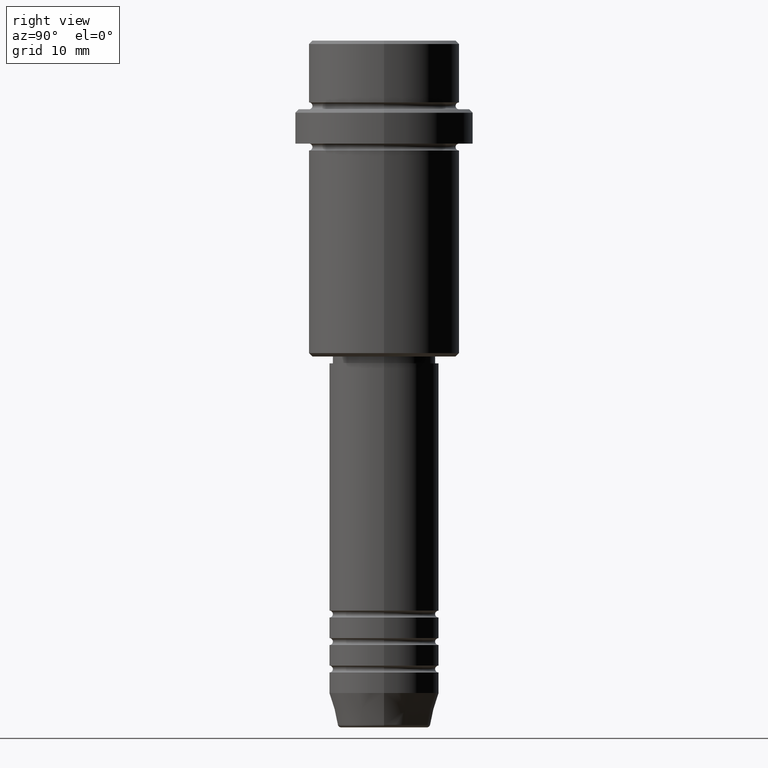
[diagram: clean part render]
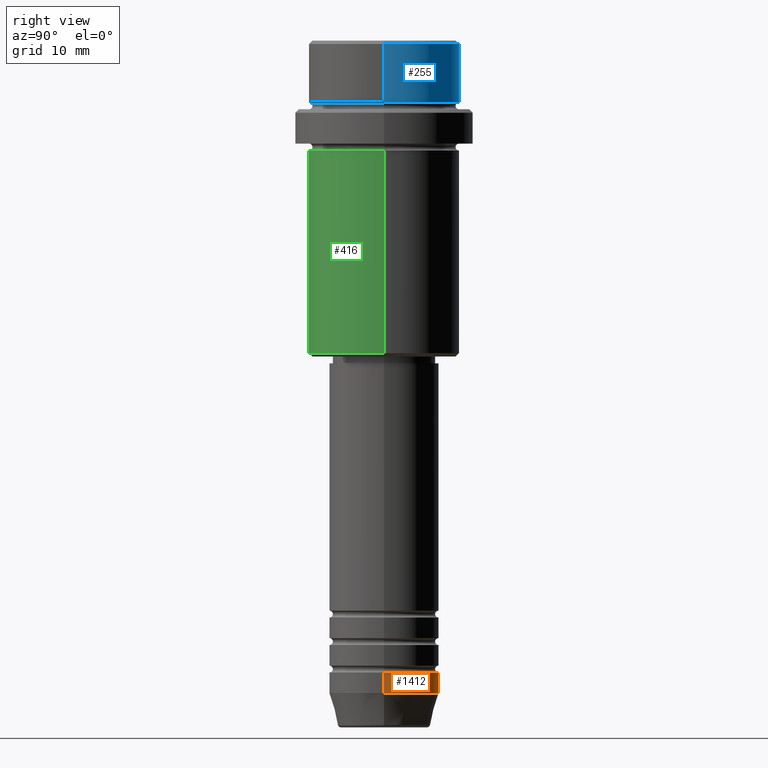
[diagram: same view with three faces highlighted in distinct colors, each labeled with its STEP entity id]
A machine part, right view with three faces highlighted in distinct colors.
Their STEP definitions:

[orange] entity #1412 — the highlighted cylindrical surface (partial cylindrical patch) has radius 8 mm, axis along (-0, -0, 1).
#12 = VERTEX_POINT ( 'NONE', #1232 ) ;
#92 = DIRECTION ( 'NONE',  ( -0.000000000000000000, -0.000000000000000000, 1.000000000000000000 ) ) ;
#105 = EDGE_CURVE ( 'NONE', #109, #125, #729, .T. ) ;
#108 = CARTESIAN_POINT ( 'NONE',  ( 0.000000000000000000, 0.000000000000000000, -92.00000000000000000 ) ) ;
#109 = VERTEX_POINT ( 'NONE', #423 ) ;
#125 = VERTEX_POINT ( 'NONE', #174 ) ;
#128 = ORIENTED_EDGE ( 'NONE', *, *, #799, .T. ) ;
#164 = CIRCLE ( 'NONE', #698, 8.000000000000000000 ) ;
#174 = CARTESIAN_POINT ( 'NONE',  ( 8.000000000000000000, 0.000000000000000000, -92.00000000000000000 ) ) ;
#196 = CARTESIAN_POINT ( 'NONE',  ( 0.000000000000000000, 0.000000000000000000, -95.00000000000000000 ) ) ;
#216 = EDGE_CURVE ( 'NONE', #1077, #12, #431, .T. ) ;
#304 = DIRECTION ( 'NONE',  ( 1.000000000000000000, 0.000000000000000000, 0.000000000000000000 ) ) ;
#313 = DIRECTION ( 'NONE',  ( 1.000000000000000000, 0.000000000000000000, 0.000000000000000000 ) ) ;
#364 = AXIS2_PLACEMENT_3D ( 'NONE', #1399, #92, #313 ) ;
#406 = CARTESIAN_POINT ( 'NONE',  ( 8.000000000000000000, 0.000000000000000000, 0.000000000000000000 ) ) ;
#423 = CARTESIAN_POINT ( 'NONE',  ( 8.000000000000000000, 0.000000000000000000, -95.00000000000000000 ) ) ;
#431 = LINE ( 'NONE', #1192, #987 ) ;
#454 = EDGE_LOOP ( 'NONE', ( #128, #947, #1096, #787 ) ) ;
#548 = CIRCLE ( 'NONE', #696, 8.000000000000000000 ) ;
#619 = DIRECTION ( 'NONE',  ( -0.000000000000000000, -0.000000000000000000, 1.000000000000000000 ) ) ;
#670 = CARTESIAN_POINT ( 'NONE',  ( -8.000000000000000000, 9.797174393178825657E-16, -95.00000000000000000 ) ) ;
#696 = AXIS2_PLACEMENT_3D ( 'NONE', #196, #619, #304 ) ;
#698 = AXIS2_PLACEMENT_3D ( 'NONE', #108, #1180, #1095 ) ;
#729 = LINE ( 'NONE', #406, #782 ) ;
#756 = CYLINDRICAL_SURFACE ( 'NONE', #364, 8.000000000000000000 ) ;
#782 = VECTOR ( 'NONE', #1264, 1000.000000000000000 ) ;
#787 = ORIENTED_EDGE ( 'NONE', *, *, #105, .F. ) ;
#799 = EDGE_CURVE ( 'NONE', #109, #1077, #548, .T. ) ;
#863 = FACE_OUTER_BOUND ( 'NONE', #454, .T. ) ;
#947 = ORIENTED_EDGE ( 'NONE', *, *, #216, .T. ) ;
#987 = VECTOR ( 'NONE', #1411, 1000.000000000000000 ) ;
#1009 = EDGE_CURVE ( 'NONE', #125, #12, #164, .T. ) ;
#1077 = VERTEX_POINT ( 'NONE', #670 ) ;
#1095 = DIRECTION ( 'NONE',  ( 1.000000000000000000, 0.000000000000000000, 0.000000000000000000 ) ) ;
#1096 = ORIENTED_EDGE ( 'NONE', *, *, #1009, .F. ) ;
#1180 = DIRECTION ( 'NONE',  ( -0.000000000000000000, -0.000000000000000000, 1.000000000000000000 ) ) ;
#1192 = CARTESIAN_POINT ( 'NONE',  ( -8.000000000000000000, 9.797174393178825657E-16, 0.000000000000000000 ) ) ;
#1232 = CARTESIAN_POINT ( 'NONE',  ( -8.000000000000000000, 9.797174393178825657E-16, -92.00000000000000000 ) ) ;
#1264 = DIRECTION ( 'NONE',  ( -0.000000000000000000, -0.000000000000000000, 1.000000000000000000 ) ) ;
#1399 = CARTESIAN_POINT ( 'NONE',  ( 0.000000000000000000, 0.000000000000000000, 0.000000000000000000 ) ) ;
#1411 = DIRECTION ( 'NONE',  ( -0.000000000000000000, -0.000000000000000000, 1.000000000000000000 ) ) ;
#1412 = ADVANCED_FACE ( 'NONE', ( #863 ), #756, .T. ) ;

[blue] entity #255 — the highlighted cylindrical surface (partial cylindrical patch) has radius 11 mm, axis along (-0, -0, 1).
#6 = VERTEX_POINT ( 'NONE', #595 ) ;
#50 = CARTESIAN_POINT ( 'NONE',  ( 10.99999999999998757, 0.000000000000000000, 0.000000000000000000 ) ) ;
#165 = AXIS2_PLACEMENT_3D ( 'NONE', #817, #685, #1358 ) ;
#167 = EDGE_CURVE ( 'NONE', #6, #966, #716, .T. ) ;
#186 = LINE ( 'NONE', #422, #340 ) ;
#255 = ADVANCED_FACE ( 'NONE', ( #823 ), #923, .T. ) ;
#296 = LINE ( 'NONE', #50, #763 ) ;
#340 = VECTOR ( 'NONE', #1296, 1000.000000000000000 ) ;
#350 = VERTEX_POINT ( 'NONE', #543 ) ;
#352 = EDGE_CURVE ( 'NONE', #1142, #350, #564, .T. ) ;
#422 = CARTESIAN_POINT ( 'NONE',  ( -10.99999999999998757, 1.347111479062086827E-15, 0.000000000000000000 ) ) ;
#444 = EDGE_LOOP ( 'NONE', ( #1012, #1048, #1295, #673 ) ) ;
#543 = CARTESIAN_POINT ( 'NONE',  ( -10.99999999999997158, 1.347111479062085841E-15, -9.000000000000000000 ) ) ;
#564 = CIRCLE ( 'NONE', #1229, 10.99999999999997158 ) ;
#595 = CARTESIAN_POINT ( 'NONE',  ( -10.99999999999998757, 1.347111479062086827E-15, -0.5000000000000023315 ) ) ;
#612 = CARTESIAN_POINT ( 'NONE',  ( 0.000000000000000000, 0.000000000000000000, -0.5000000000000023315 ) ) ;
#628 = DIRECTION ( 'NONE',  ( -0.000000000000000000, -0.000000000000000000, 1.000000000000000000 ) ) ;
#673 = ORIENTED_EDGE ( 'NONE', *, *, #809, .F. ) ;
#685 = DIRECTION ( 'NONE',  ( -0.000000000000000000, -0.000000000000000000, 1.000000000000000000 ) ) ;
#716 = CIRCLE ( 'NONE', #811, 10.99999999999998757 ) ;
#763 = VECTOR ( 'NONE', #628, 1000.000000000000000 ) ;
#809 = EDGE_CURVE ( 'NONE', #1142, #966, #296, .T. ) ;
#811 = AXIS2_PLACEMENT_3D ( 'NONE', #612, #1149, #826 ) ;
#817 = CARTESIAN_POINT ( 'NONE',  ( 0.000000000000000000, 0.000000000000000000, 0.000000000000000000 ) ) ;
#823 = FACE_OUTER_BOUND ( 'NONE', #444, .T. ) ;
#826 = DIRECTION ( 'NONE',  ( 1.000000000000000000, 0.000000000000000000, 0.000000000000000000 ) ) ;
#869 = DIRECTION ( 'NONE',  ( -0.000000000000000000, -0.000000000000000000, 1.000000000000000000 ) ) ;
#923 = CYLINDRICAL_SURFACE ( 'NONE', #165, 10.99999999999998757 ) ;
#958 = CARTESIAN_POINT ( 'NONE',  ( 0.000000000000000000, 0.000000000000000000, -9.000000000000000000 ) ) ;
#966 = VERTEX_POINT ( 'NONE', #971 ) ;
#971 = CARTESIAN_POINT ( 'NONE',  ( 10.99999999999998757, 0.000000000000000000, -0.5000000000000023315 ) ) ;
#1003 = CARTESIAN_POINT ( 'NONE',  ( 10.99999999999997158, 0.000000000000000000, -9.000000000000000000 ) ) ;
#1012 = ORIENTED_EDGE ( 'NONE', *, *, #352, .T. ) ;
#1048 = ORIENTED_EDGE ( 'NONE', *, *, #1395, .T. ) ;
#1057 = DIRECTION ( 'NONE',  ( 1.000000000000000000, 0.000000000000000000, 0.000000000000000000 ) ) ;
#1142 = VERTEX_POINT ( 'NONE', #1003 ) ;
#1149 = DIRECTION ( 'NONE',  ( 0.000000000000000000, 0.000000000000000000, -1.000000000000000000 ) ) ;
#1229 = AXIS2_PLACEMENT_3D ( 'NONE', #958, #869, #1057 ) ;
#1295 = ORIENTED_EDGE ( 'NONE', *, *, #167, .T. ) ;
#1296 = DIRECTION ( 'NONE',  ( -0.000000000000000000, -0.000000000000000000, 1.000000000000000000 ) ) ;
#1358 = DIRECTION ( 'NONE',  ( 1.000000000000000000, 0.000000000000000000, 0.000000000000000000 ) ) ;
#1395 = EDGE_CURVE ( 'NONE', #350, #6, #186, .T. ) ;

[green] entity #416 — the highlighted cylindrical surface (partial cylindrical patch) has radius 11 mm, axis along (-0, -0, 1).
#83 = EDGE_LOOP ( 'NONE', ( #842, #104, #111, #1134 ) ) ;
#104 = ORIENTED_EDGE ( 'NONE', *, *, #994, .T. ) ;
#111 = ORIENTED_EDGE ( 'NONE', *, *, #308, .T. ) ;
#158 = CARTESIAN_POINT ( 'NONE',  ( 10.99999999999998757, 0.000000000000000000, 0.000000000000000000 ) ) ;
#192 = VECTOR ( 'NONE', #1205, 1000.000000000000000 ) ;
#212 = EDGE_CURVE ( 'NONE', #245, #1210, #952, .T. ) ;
#220 = VERTEX_POINT ( 'NONE', #225 ) ;
#225 = CARTESIAN_POINT ( 'NONE',  ( 10.99999999999998757, 0.000000000000000000, -45.50000000000004263 ) ) ;
#245 = VERTEX_POINT ( 'NONE', #1250 ) ;
#308 = EDGE_CURVE ( 'NONE', #220, #718, #365, .T. ) ;
#365 = LINE ( 'NONE', #158, #521 ) ;
#416 = ADVANCED_FACE ( 'NONE', ( #520 ), #936, .T. ) ;
#443 = DIRECTION ( 'NONE',  ( -0.000000000000000000, -0.000000000000000000, 1.000000000000000000 ) ) ;
#463 = DIRECTION ( 'NONE',  ( 1.000000000000000000, 0.000000000000000000, 0.000000000000000000 ) ) ;
#482 = AXIS2_PLACEMENT_3D ( 'NONE', #1231, #997, #463 ) ;
#520 = FACE_OUTER_BOUND ( 'NONE', #83, .T. ) ;
#521 = VECTOR ( 'NONE', #606, 1000.000000000000000 ) ;
#606 = DIRECTION ( 'NONE',  ( -0.000000000000000000, -0.000000000000000000, 1.000000000000000000 ) ) ;
#648 = CARTESIAN_POINT ( 'NONE',  ( -10.99999999999998757, 1.347111479062086827E-15, 0.000000000000000000 ) ) ;
#718 = VERTEX_POINT ( 'NONE', #1384 ) ;
#775 = DIRECTION ( 'NONE',  ( 1.000000000000000000, 0.000000000000000000, 0.000000000000000000 ) ) ;
#778 = CARTESIAN_POINT ( 'NONE',  ( -10.99999999999997158, 1.347111479062085841E-15, -16.00000000000000355 ) ) ;
#842 = ORIENTED_EDGE ( 'NONE', *, *, #212, .F. ) ;
#933 = AXIS2_PLACEMENT_3D ( 'NONE', #1322, #1201, #775 ) ;
#936 = CYLINDRICAL_SURFACE ( 'NONE', #933, 10.99999999999998757 ) ;
#952 = LINE ( 'NONE', #648, #192 ) ;
#994 = EDGE_CURVE ( 'NONE', #245, #220, #1058, .T. ) ;
#997 = DIRECTION ( 'NONE',  ( -0.000000000000000000, -0.000000000000000000, 1.000000000000000000 ) ) ;
#1006 = CIRCLE ( 'NONE', #482, 10.99999999999997158 ) ;
#1058 = CIRCLE ( 'NONE', #1327, 10.99999999999998757 ) ;
#1086 = DIRECTION ( 'NONE',  ( -1.000000000000000000, 0.000000000000000000, 0.000000000000000000 ) ) ;
#1134 = ORIENTED_EDGE ( 'NONE', *, *, #1202, .F. ) ;
#1201 = DIRECTION ( 'NONE',  ( -0.000000000000000000, -0.000000000000000000, 1.000000000000000000 ) ) ;
#1202 = EDGE_CURVE ( 'NONE', #1210, #718, #1006, .T. ) ;
#1205 = DIRECTION ( 'NONE',  ( -0.000000000000000000, -0.000000000000000000, 1.000000000000000000 ) ) ;
#1210 = VERTEX_POINT ( 'NONE', #778 ) ;
#1231 = CARTESIAN_POINT ( 'NONE',  ( 0.000000000000000000, 0.000000000000000000, -16.00000000000000355 ) ) ;
#1250 = CARTESIAN_POINT ( 'NONE',  ( -10.99999999999998757, 1.347111479062086827E-15, -45.50000000000004263 ) ) ;
#1308 = CARTESIAN_POINT ( 'NONE',  ( 0.000000000000000000, 0.000000000000000000, -45.50000000000004263 ) ) ;
#1322 = CARTESIAN_POINT ( 'NONE',  ( 0.000000000000000000, 0.000000000000000000, 0.000000000000000000 ) ) ;
#1327 = AXIS2_PLACEMENT_3D ( 'NONE', #1308, #443, #1086 ) ;
#1384 = CARTESIAN_POINT ( 'NONE',  ( 10.99999999999997158, 0.000000000000000000, -16.00000000000000355 ) ) ;